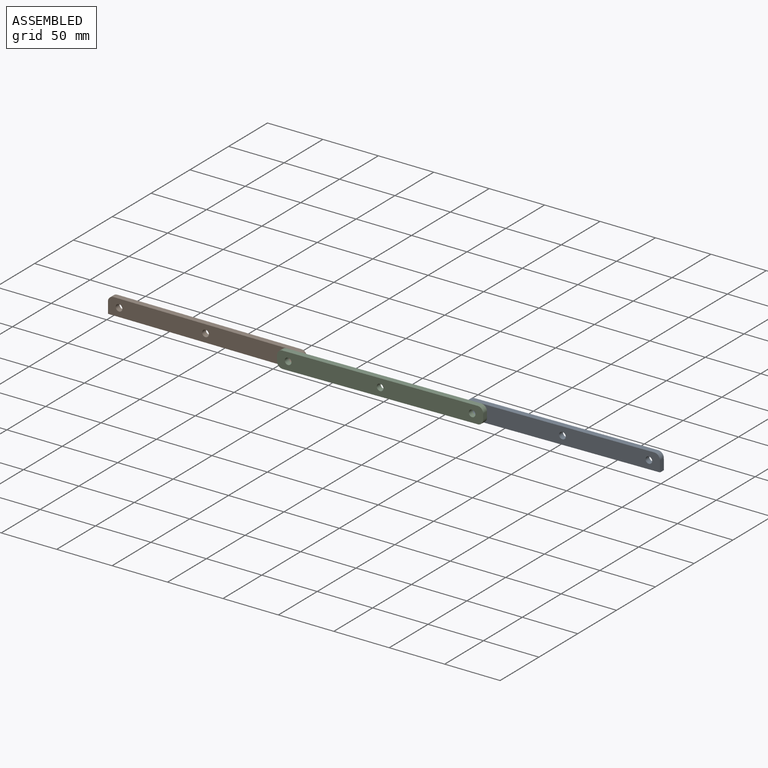
[diagram: assembled view]
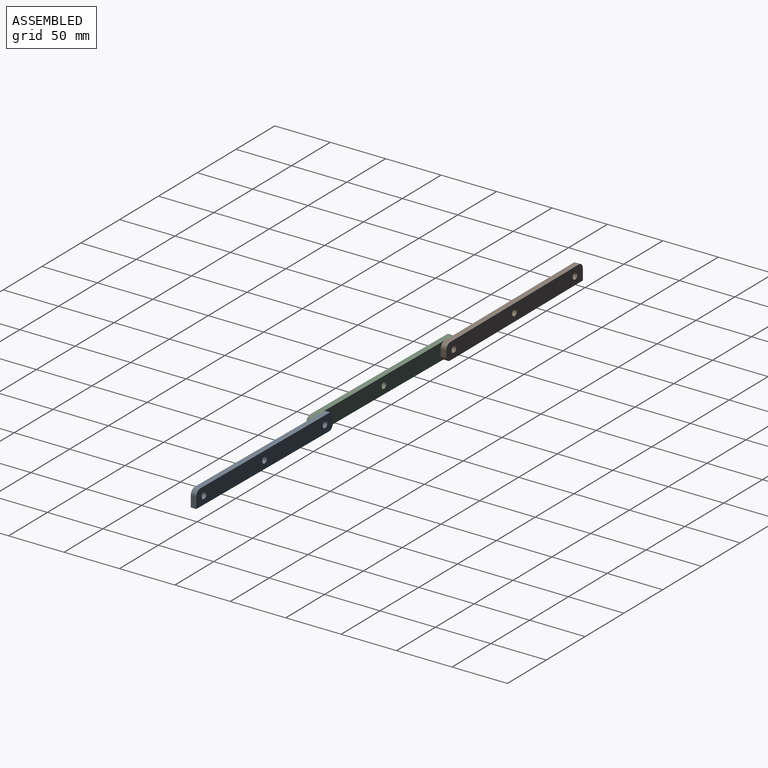
[diagram: assembled view, second angle]
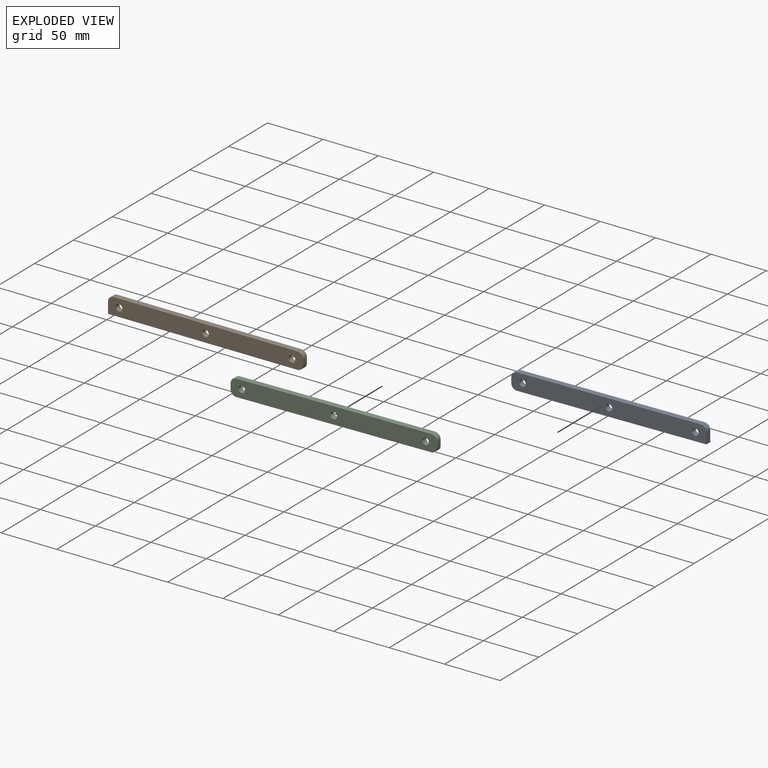
[diagram: exploded view]
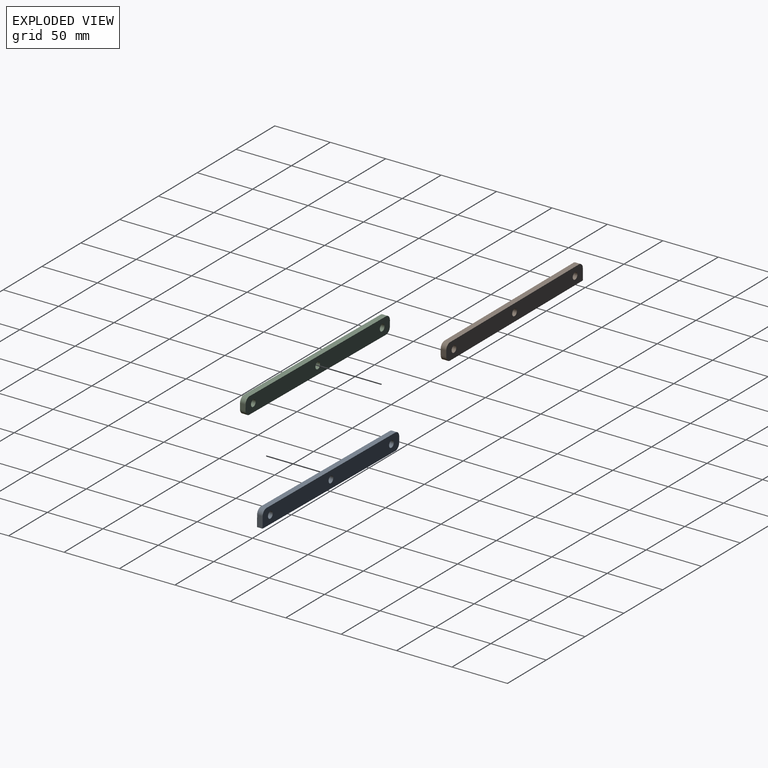
[diagram: exploded view, second angle]
ASSEMBLY  parts=3 mates=2
PART A: 12 faces, bbox 176x5x15 mm
  f0: plane 166x5mm, normal (0,0,1), area 830mm2, adj f1,f9,f10,f11
  f1: cylinder r=5mm len=5mm, axis (0,1,0), area 39.3mm2, adj f0,f2,f10,f11
  f2: plane 10x5mm, normal (-1,0,0), area 50mm2, adj f1,f3,f10,f11
  f3: plane 171x5mm, normal (0,0,-1), area 855mm2, adj f2,f4,f10,f11
  f4: cylinder r=5mm len=5mm, axis (0,1,0), area 39.3mm2, adj f3,f5,f10,f11
  f5: plane 5x5mm, normal (1,0,0), area 25mm2, adj f4,f9,f10,f11
  f6: cylinder r=3mm len=6mm, axis (0,1,0), area 94.2mm2, adj f10,f11
  f7: cylinder r=3mm len=6mm, axis (0,1,0), area 94.2mm2, adj f10,f11
  f8: cylinder r=3mm len=6mm, axis (0,1,0), area 94.2mm2, adj f10,f11
  f9: cylinder r=5mm len=5mm, axis (0,1,0), area 39.3mm2, adj f0,f5,f10,f11
  f10: plane 176x15mm, normal (0,-1,0), area 2539.1mm2, adj f0,f1,f2,f3,f4,f5,f6,f7
  f11: plane 176x15mm, normal (0,1,0), area 2539.1mm2, adj f0,f1,f2,f3,f4,f5,f6,f7
PART B: same geometry as A
PART C: 13 faces, bbox 186x5x15 mm
  f0: plane 176x5mm, normal (0,0,1), area 880mm2, adj f1,f10,f11,f12
  f1: cylinder r=5mm len=5mm, axis (0,1,0), area 39.3mm2, adj f0,f2,f11,f12
  f2: plane 5x5mm, normal (-1,0,0), area 25mm2, adj f1,f3,f11,f12
  f3: cylinder r=5mm len=5mm, axis (0,1,0), area 39.3mm2, adj f2,f4,f11,f12
  f4: plane 176x5mm, normal (0,0,-1), area 880mm2, adj f3,f5,f11,f12
  f5: cylinder r=5mm len=5mm, axis (0,1,0), area 39.3mm2, adj f4,f6,f11,f12
  f6: plane 5x5mm, normal (1,0,0), area 25mm2, adj f5,f10,f11,f12
  f7: cylinder r=3mm len=6mm, axis (0,1,0), area 94.2mm2, adj f11,f12
  f8: cylinder r=3mm len=6mm, axis (0,1,0), area 94.2mm2, adj f11,f12
  f9: cylinder r=3mm len=6mm, axis (0,1,0), area 94.2mm2, adj f11,f12
  f10: cylinder r=5mm len=5mm, axis (0,1,0), area 39.3mm2, adj f0,f6,f11,f12
  f11: plane 186x15mm, normal (0,-1,0), area 2683.7mm2, adj f0,f1,f2,f3,f4,f5,f6,f7
  f12: plane 186x15mm, normal (0,1,0), area 2683.7mm2, adj f0,f1,f2,f3,f4,f5,f6,f7
PLACE A rot(axis=(0.01,0,-1),180deg) t=(352.19,45.81,-28.01)mm
PLACE B t=(-145.88,50.81,-31.84)mm fixed
PLACE C rot(axis=(0,-1,0),0.7deg) t=(10.21,45.81,-31.96)mm
MATE revolute C.f9 <-> A.f6  axis (0,1,0) through (186.11,45.81,-22.43)mm
MATE revolute B.f6 <-> C.f7  axis (0,-1,0) through (20.12,45.81,-24.34)mm
